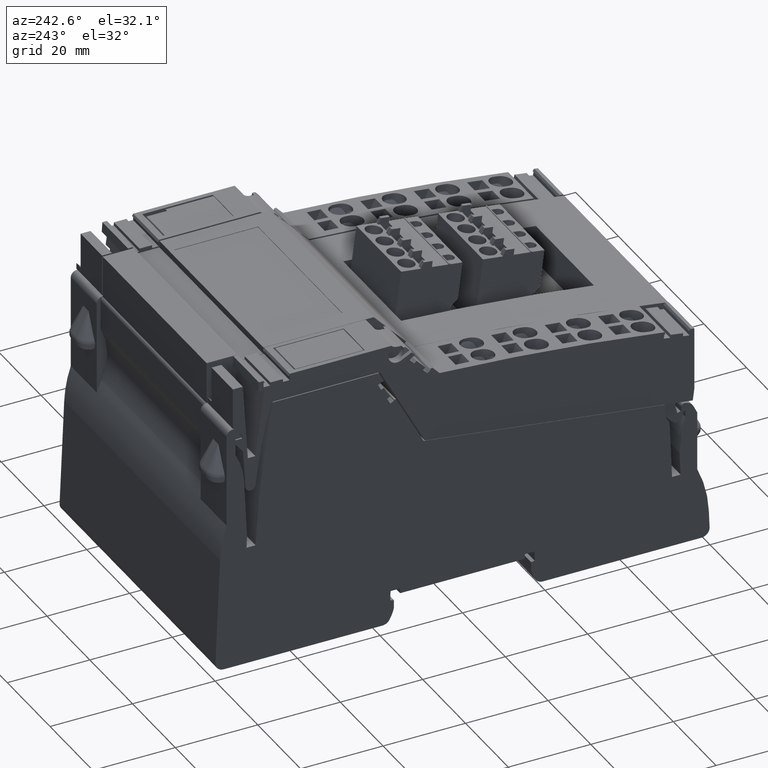
[diagram: clean part render]
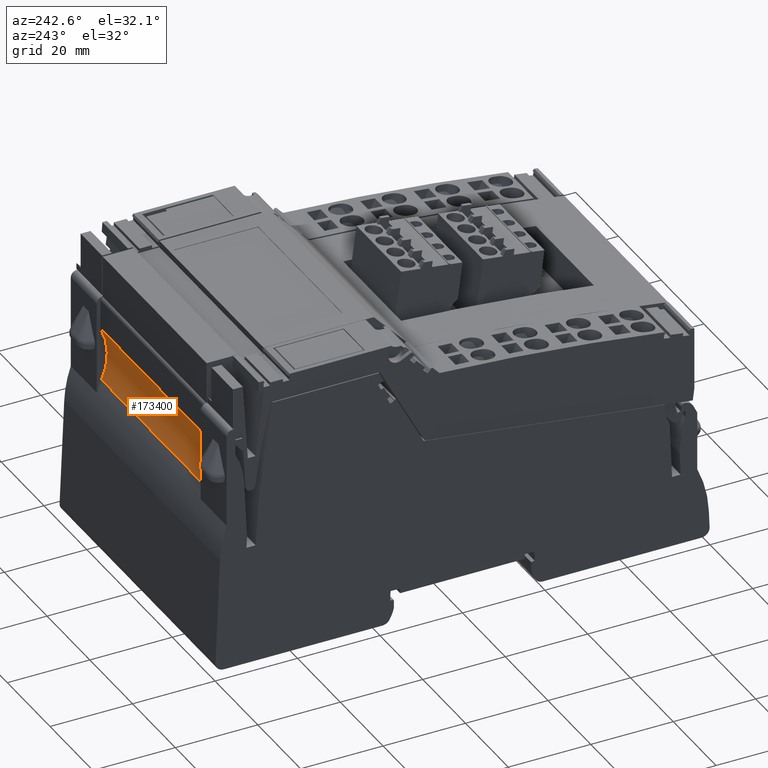
[diagram: same view with one face highlighted and labeled with its STEP entity id]
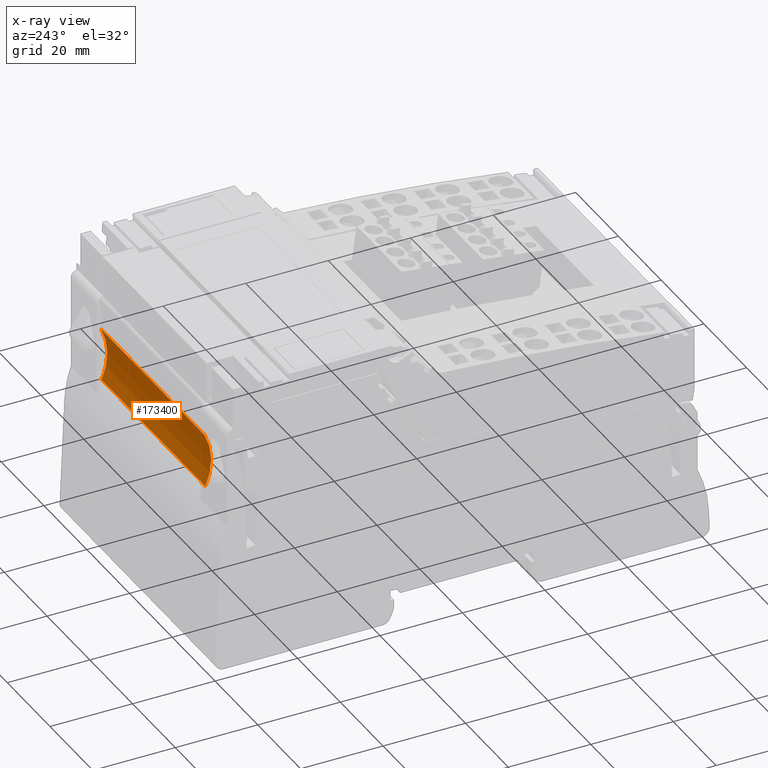
[diagram: x-ray of the same camera — body ghosted, the highlighted face saturated]
A machine part, auxiliary view. The second image highlights one B-rep face of the part: STEP entity #173400.
The next image is the same camera in x-ray: the body ghosted, the highlighted face saturated — about 0% of this face is hidden behind the body in this view.
In plain terms, the highlighted cylindrical surface (partial cylindrical patch) has radius 15 mm, axis along (-1, 0, -0).
Its self-contained STEP definition (entity closure, byte-faithful):
#18110=CARTESIAN_POINT('',(-125.591351313915,-66.3046367892707,46.8));
#18120=VERTEX_POINT('',#18110);
#18150=CARTESIAN_POINT('',(-138.987604535334,-59.5562740524502,46.8));
#18160=DIRECTION('',(0.,0.,1.));
#18170=DIRECTION('',(-1.,0.,0.));
#18180=AXIS2_PLACEMENT_3D('',#18150,#18160,#18170);
#18190=CIRCLE('',#18180,15.0000000000031);
#18200=CARTESIAN_POINT('',(-125.375615187316,-53.2543897319057,46.8));
#18210=VERTEX_POINT('',#18200);
#18220=EDGE_CURVE('',#18120,#18210,#18190,.T.);
#102710=CARTESIAN_POINT('',(-125.591351313915,-66.3046367892707,
46.800003));
#102720=DIRECTION('',(0.,0.,-1.));
#102730=VECTOR('',#102720,1.);
#102740=LINE('',#102710,#102730);
#102750=CARTESIAN_POINT('',(-125.591351313915,-66.3046367892707,
-1.80000000000002));
#102760=VERTEX_POINT('',#102750);
#102770=EDGE_CURVE('',#18120,#102760,#102740,.T.);
#162090=CARTESIAN_POINT('',(-125.375615187316,-53.2543897319057,
-1.79999999998863));
#162100=VERTEX_POINT('',#162090);
#162130=CARTESIAN_POINT('',(-138.987604535334,-59.5562740524502,
-1.80000000000002));
#162140=DIRECTION('',(-1.04009420822853E-45,3.88938454866321E-62,1.));
#162150=DIRECTION('',(-1.,0.,-1.04009420822853E-45));
#162160=AXIS2_PLACEMENT_3D('',#162130,#162140,#162150);
#162170=CIRCLE('',#162160,15.0000000000031);
#162180=EDGE_CURVE('',#102760,#162100,#162170,.T.);
#163340=CARTESIAN_POINT('',(-125.375615187316,-53.2543897319057,
46.7999999999886));
#163350=DIRECTION('',(0.,0.,-1.));
#163360=VECTOR('',#163350,1.);
#163370=LINE('',#163340,#163360);
#163380=EDGE_CURVE('',#18210,#162100,#163370,.T.);
#173290=CARTESIAN_POINT('',(-138.987604535334,-59.5562740524502,
46.7999999999886));
#173300=DIRECTION('',(0.,0.,-1.));
#173310=DIRECTION('',(-1.,0.,0.));
#173320=AXIS2_PLACEMENT_3D('',#173290,#173300,#173310);
#173330=CYLINDRICAL_SURFACE('',#173320,15.0000000000031);
#173340=ORIENTED_EDGE('',*,*,#162180,.F.);
#173350=ORIENTED_EDGE('',*,*,#163380,.T.);
#173360=ORIENTED_EDGE('',*,*,#18220,.T.);
#173370=ORIENTED_EDGE('',*,*,#102770,.F.);
#173380=EDGE_LOOP('',(#173370,#173360,#173350,#173340));
#173390=FACE_OUTER_BOUND('',#173380,.T.);
#173400=ADVANCED_FACE('',(#173390),#173330,.F.);